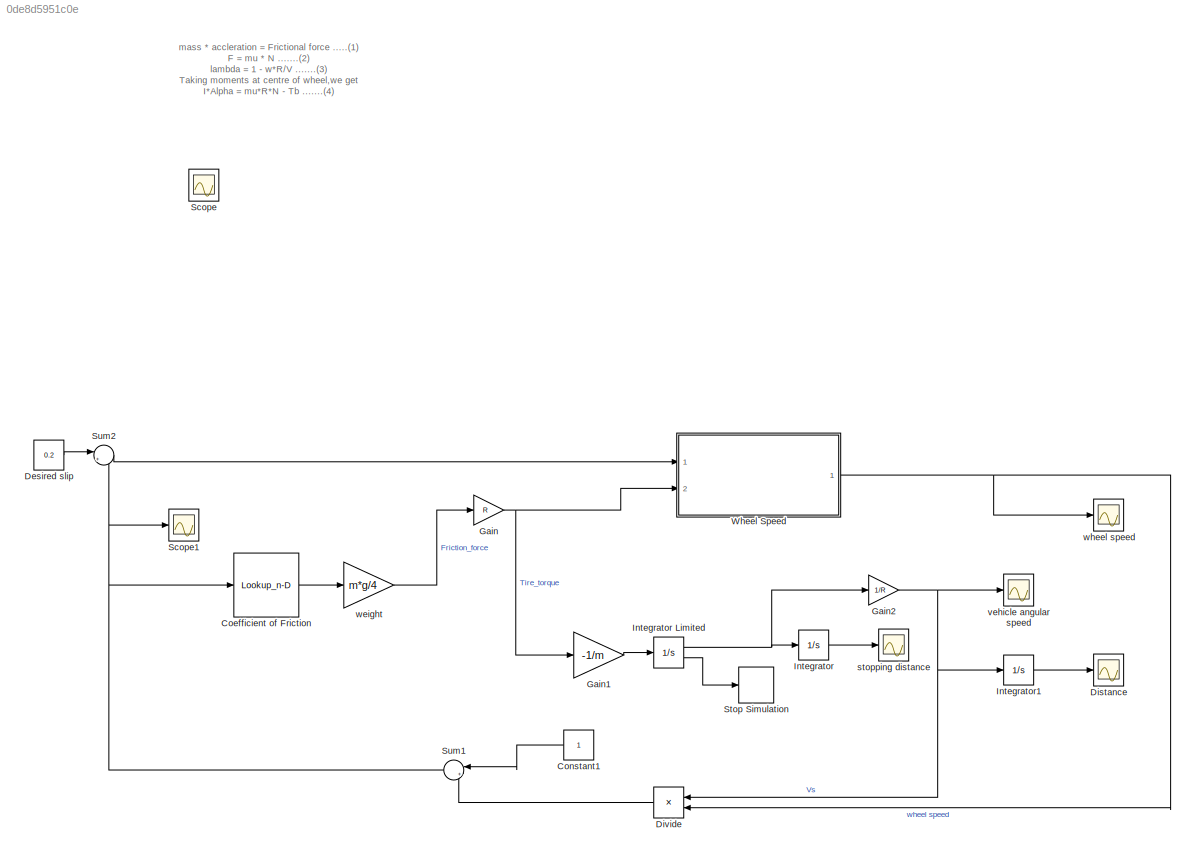
MODEL slx_0de8d5951c0e
KIND model
CONFIG AbsTol = auto
CONFIG EnableMultiTasking = off
CONFIG FixedStep = auto
CONFIG MaxStep = auto
CONFIG MinStep = auto
CONFIG RelTol = 1e-3
CONFIG SampleTimeConstraint = Unconstrained
CONFIG SolverName = VariableStepAuto
CONFIG StartTime = 0.0
CONFIG StopTime = 60
WORKSPACE source: mxarray member
WORKSPACE J = 1.13
WORKSPACE R = 0.33
WORKSPACE V0 = 27.78
WORKSPACE g = 9.81
WORKSPACE m = 342
BLOCK [Lookup_n-D] Coefficient of Friction
  BreakpointsForDimension1 = [0,0.05,0.1,0.15,0.2,0.25,0.3,0.35,0.4,0.45,0.5,0.55,0.6,0.65,0.7,0.75,0.8,0.85,0.9,0.95,1]
  InputPortMap = u0
  InternalRulePriority = Speed
  NumberOfTableDimensions = 1
  Ports = [1, 1]
  RndMeth = Simplest
  Table = [0,0.4,0.8,0.97,1,0.98,0.96,0.94,0.92,0.9,0.88,0.885,0.83,0.81,0.79,0.77,0.75,0.73,0.72,0.71,0.70]
BLOCK [Constant] Constant1
BLOCK [Constant] Desired slip
  Value = 0.2
BLOCK [Scope] Distance
  Floating = off
  NumInputPorts = 1
  Ports = [1]
  ScopeSpecificationString = Simulink.scopes.TimeScopeBlockCfg('CurrentConfiguration', extmgr.ConfigurationSet(extmgr.Configuration('Core','General UI',true),extmgr.Configuration('Core','Source UI',true),extmgr.Configuration('Sources','WiredSimulink',true,'DataLoggingVariableName','ScopeData1'),extmgr.Configuration('Visuals','Time Domain',true,'SerializedDisplays',{struct('MinYLimReal','-199.1671','MaxYLimReal','1792.50393','...<+1417ch>
BLOCK [Product] Divide
  Inputs = /*
  Ports = [2, 1]
BLOCK [Gain] Gain
  Gain = R
BLOCK [Gain] Gain1
  Gain = -1/m
BLOCK [Gain] Gain2
  Gain = 1/R
BLOCK [Integrator] Integrator
  Ports = [1, 1]
BLOCK [Integrator] Integrator Limited
  InitialCondition = V0
  LimitOutput = on
  LowerSaturationLimit = 0
  Ports = [1, 2]
  ShowSaturationPort = on
  UpperSaturationLimit = 1000
BLOCK [Integrator] Integrator1
  Ports = [1, 1]
BLOCK [Scope] Scope
  Floating = off
  IOType = viewer
  NumInputPorts = 1
  Ports = []
  ScopeSpecificationString = Simulink.scopes.TimeScopeBlockCfg('CurrentConfiguration', extmgr.ConfigurationSet(extmgr.Configuration('Core','General UI',true),extmgr.Configuration('Core','Source UI',true),extmgr.Configuration('Sources','WiredSimulink',true),extmgr.Configuration('Visuals','Time Domain',true,'SerializedDisplays',{struct('MinYLimReal','-20.80988','MaxYLimReal','1011.60165','YLabelReal','','MinYLimMag','0.00000','...<+2616ch>
BLOCK [Scope] Scope1
  Floating = off
  NumInputPorts = 1
  Ports = [1]
  ScopeSpecificationString = Simulink.scopes.TimeScopeBlockCfg('CurrentConfiguration', extmgr.ConfigurationSet(extmgr.Configuration('Core','General UI',true),extmgr.Configuration('Core','Source UI',true),extmgr.Configuration('Sources','WiredSimulink',true,'DataLoggingVariableName','ScopeData2'),extmgr.Configuration('Visuals','Time Domain',true,'SerializedDisplays',{struct('MinYLimReal','-0.125','MaxYLimReal','1.125','YLabelRe...<+1422ch>
BLOCK [Stop] Stop Simulation
BLOCK [Sum] Sum1
  Inputs = |+-
  Ports = [2, 1]
BLOCK [Sum] Sum2
  Inputs = |+-
  Ports = [2, 1]
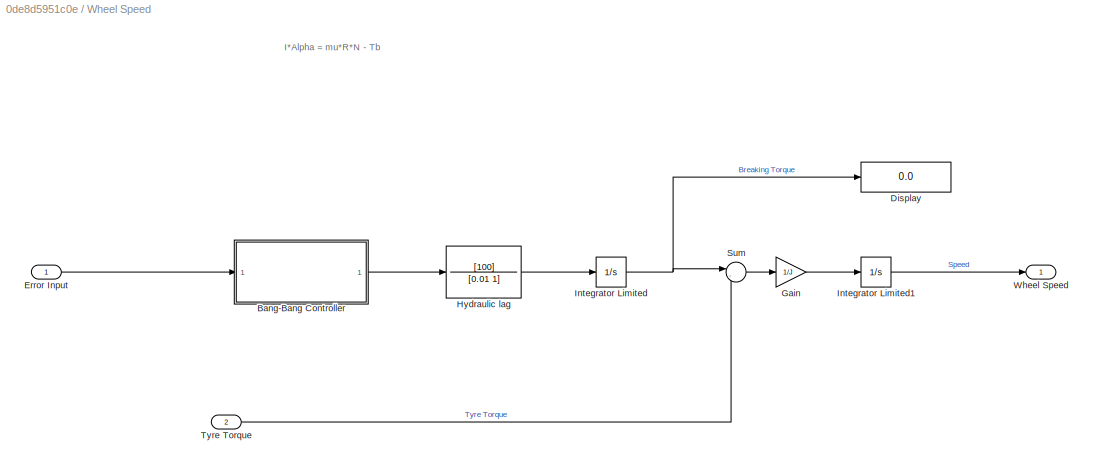
BLOCK [SubSystem] Wheel Speed
  Ports = [2, 1]
  RequestExecContextInheritance = off
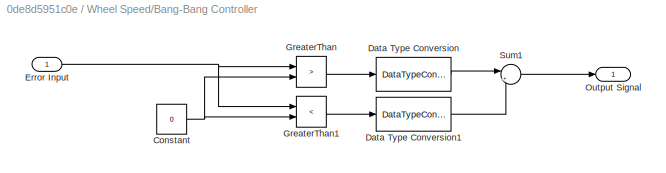
BLOCK [SubSystem] Wheel Speed/Bang-Bang Controller
  Ports = [1, 1]
  RequestExecContextInheritance = off
BLOCK [Constant] Wheel Speed/Bang-Bang Controller/Constant
  Value = 0
BLOCK [DataTypeConversion] Wheel Speed/Bang-Bang Controller/Data Type Conversion
  OutDataTypeStr = double
  SaturateOnIntegerOverflow = off
BLOCK [DataTypeConversion] Wheel Speed/Bang-Bang Controller/Data Type Conversion1
  OutDataTypeStr = double
  SaturateOnIntegerOverflow = off
BLOCK [Inport] Wheel Speed/Bang-Bang Controller/Error Input
BLOCK [RelationalOperator] Wheel Speed/Bang-Bang Controller/GreaterThan
  InputSameDT = off
  Operator = >
  OutDataTypeStr = boolean
  Ports = [2, 1]
  RndMeth = Simplest
BLOCK [RelationalOperator] Wheel Speed/Bang-Bang Controller/GreaterThan1
  InputSameDT = off
  Operator = <
  OutDataTypeStr = boolean
  Ports = [2, 1]
  RndMeth = Simplest
BLOCK [Outport] Wheel Speed/Bang-Bang Controller/Output Signal
BLOCK [Sum] Wheel Speed/Bang-Bang Controller/Sum1
  Inputs = |+-
  Ports = [2, 1]
BLOCK [Display] Wheel Speed/Display
  Decimation = 1
  Ports = [1]
BLOCK [Inport] Wheel Speed/Error Input
BLOCK [Gain] Wheel Speed/Gain
  Gain = 1/J
BLOCK [TransferFcn] Wheel Speed/Hydraulic lag
  Denominator = [0.01 1]
  Numerator = [100]
BLOCK [Integrator] Wheel Speed/Integrator Limited
  LimitOutput = on
  LowerSaturationLimit = 0
  Ports = [1, 1]
  UpperSaturationLimit = 1000
BLOCK [Integrator] Wheel Speed/Integrator Limited1
  InitialCondition = V0/R
  LimitOutput = on
  LowerSaturationLimit = 0
  Ports = [1, 1]
  UpperSaturationLimit = 1000
BLOCK [Sum] Wheel Speed/Sum
  Inputs = |-+
  Ports = [2, 1]
BLOCK [Inport] Wheel Speed/Tyre Torque
  Port = 2
BLOCK [Outport] Wheel Speed/Wheel Speed
BLOCK [Scope] stopping distance
  Floating = off
  NumInputPorts = 1
  Ports = [1]
  ScopeSpecificationString = Simulink.scopes.TimeScopeBlockCfg('CurrentConfiguration', extmgr.ConfigurationSet(extmgr.Configuration('Core','General UI',true),extmgr.Configuration('Core','Source UI',true),extmgr.Configuration('Sources','WiredSimulink',true,'DataLoggingVariableName','ScopeData3'),extmgr.Configuration('Visuals','Time Domain',true,'SerializedDisplays',{struct('MinYLimReal','-65.72515','MaxYLimReal','591.52632','Y...<+1408ch>
BLOCK [Scope] vehicle angular speed
  Floating = off
  NumInputPorts = 1
  Ports = [1]
  ScopeSpecificationString = Simulink.scopes.TimeScopeBlockCfg('CurrentConfiguration', extmgr.ConfigurationSet(extmgr.Configuration('Core','General UI',true),extmgr.Configuration('Core','Source UI',true),extmgr.Configuration('Sources','WiredSimulink',true,'DataLoggingVariableName','ScopeData4'),extmgr.Configuration('Visuals','Time Domain',true,'SerializedDisplays',{struct('MinYLimReal','-10.50563','MaxYLimReal','94.70265','YL...<+1423ch>
BLOCK [Gain] weight
  Gain = m*g/4
BLOCK [Scope] wheel speed
  Floating = off
  NumInputPorts = 1
  Ports = [1]
  ScopeSpecificationString = Simulink.scopes.TimeScopeBlockCfg('CurrentConfiguration', extmgr.ConfigurationSet(extmgr.Configuration('Core','General UI',true),extmgr.Configuration('Core','Source UI',true),extmgr.Configuration('Sources','WiredSimulink',true,'DataLoggingVariableName','ScopeData1'),extmgr.Configuration('Visuals','Time Domain',true,'SerializedDisplays',{struct('MinYLimReal','-10.52273','MaxYLimReal','94.70455','YL...<+1407ch>
ANNOTATION (root): mass * accleration = Frictional force .....(1) F = mu * N .......(2) lambda = 1 - w*R/V .......(3) Taking moments at centre of wheel,we get I*Alpha = mu*R*N - Tb .......(4)
ANNOTATION Wheel Speed: I*Alpha = mu*R*N - Tb
LINE Coefficient of Friction:1 -> weight:1
LINE Constant1:1 -> Sum1:1
LINE Desired slip:1 -> Sum2:1
LINE Divide:1 -> Sum1:2
LINE Gain1:1 -> Integrator Limited:1
NET Gain2:1 -> Divide:1, Integrator1:1, vehicle angular speed:1
NET Gain:1 -> Gain1:1, Wheel Speed:2
NET Integrator Limited:1 -> Gain2:1, Integrator:1
LINE Integrator Limited:2 -> Stop Simulation:1
LINE Integrator1:1 -> Distance:1
LINE Integrator:1 -> stopping distance:1
NET Sum1:1 -> Coefficient of Friction:1, Scope1:1, Sum2:2
LINE Sum2:1 -> Wheel Speed:1
NET Wheel Speed/Bang-Bang Controller/Constant:1 -> Wheel Speed/Bang-Bang Controller/GreaterThan1:2, Wheel Speed/Bang-Bang Controller/GreaterThan:2
LINE Wheel Speed/Bang-Bang Controller/Data Type Conversion1:1 -> Wheel Speed/Bang-Bang Controller/Sum1:2
LINE Wheel Speed/Bang-Bang Controller/Data Type Conversion:1 -> Wheel Speed/Bang-Bang Controller/Sum1:1
NET Wheel Speed/Bang-Bang Controller/Error Input:1 -> Wheel Speed/Bang-Bang Controller/GreaterThan1:1, Wheel Speed/Bang-Bang Controller/GreaterThan:1
LINE Wheel Speed/Bang-Bang Controller/GreaterThan1:1 -> Wheel Speed/Bang-Bang Controller/Data Type Conversion1:1
LINE Wheel Speed/Bang-Bang Controller/GreaterThan:1 -> Wheel Speed/Bang-Bang Controller/Data Type Conversion:1
LINE Wheel Speed/Bang-Bang Controller/Sum1:1 -> Wheel Speed/Bang-Bang Controller/Output Signal:1
LINE Wheel Speed/Bang-Bang Controller:1 -> Wheel Speed/Hydraulic lag:1
LINE Wheel Speed/Error Input:1 -> Wheel Speed/Bang-Bang Controller:1
LINE Wheel Speed/Gain:1 -> Wheel Speed/Integrator Limited1:1
LINE Wheel Speed/Hydraulic lag:1 -> Wheel Speed/Integrator Limited:1
LINE Wheel Speed/Integrator Limited1:1 -> Wheel Speed/Wheel Speed:1
NET Wheel Speed/Integrator Limited:1 -> Wheel Speed/Display:1, Wheel Speed/Sum:1
LINE Wheel Speed/Sum:1 -> Wheel Speed/Gain:1
LINE Wheel Speed/Tyre Torque:1 -> Wheel Speed/Sum:2
NET Wheel Speed:1 -> Divide:2, wheel speed:1
LINE weight:1 -> Gain:1
note: NET lines group one-source signal fan-out (src -> all destinations, sorted); 1:1 wires keep LINE
